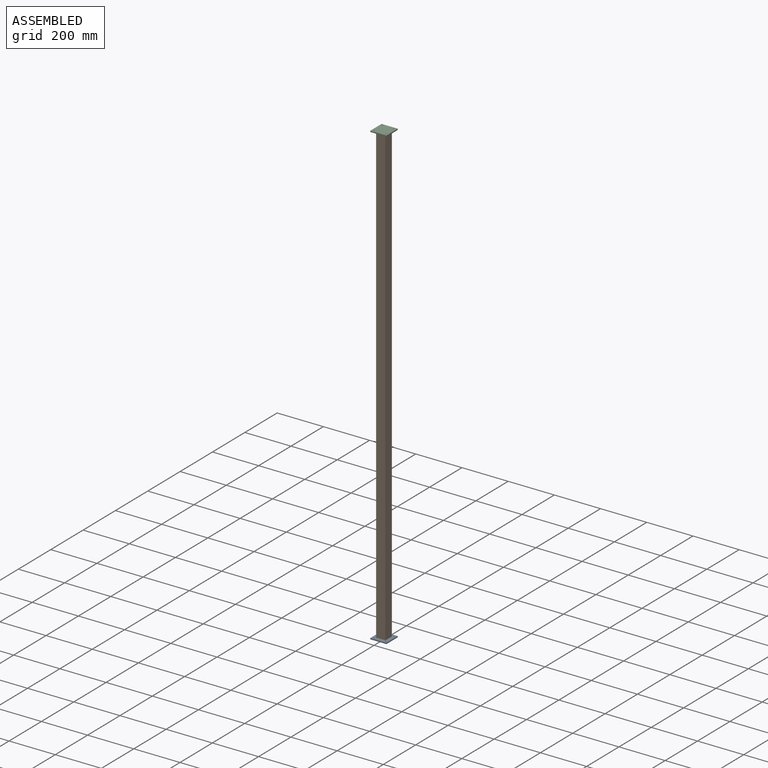
[diagram: assembled view]
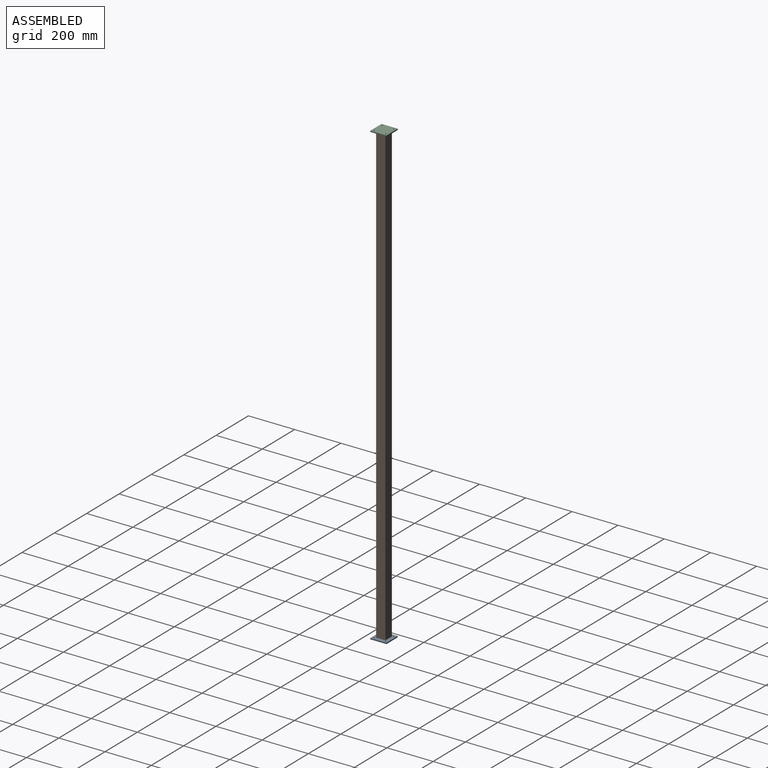
[diagram: assembled view, second angle]
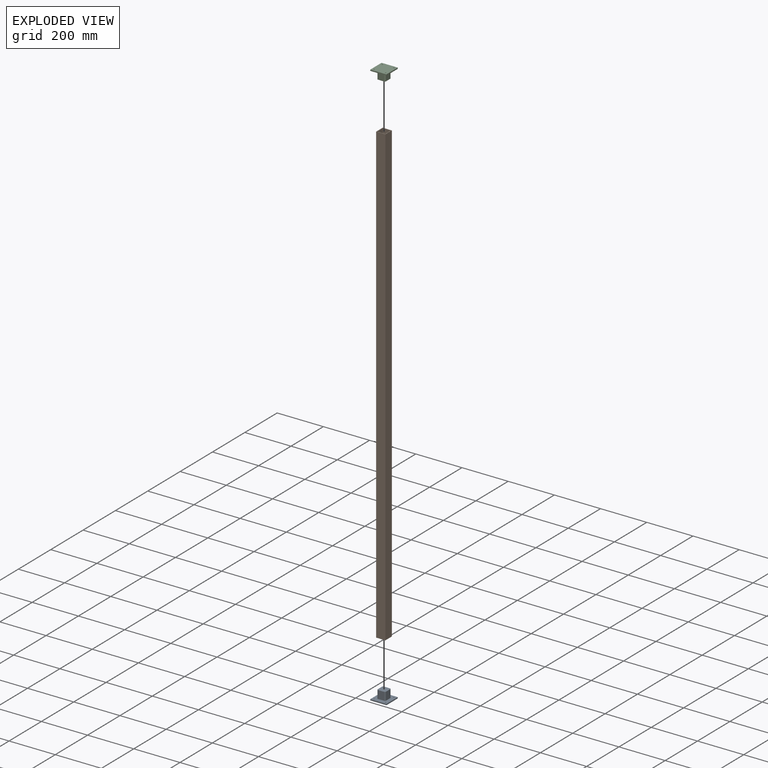
[diagram: exploded view]
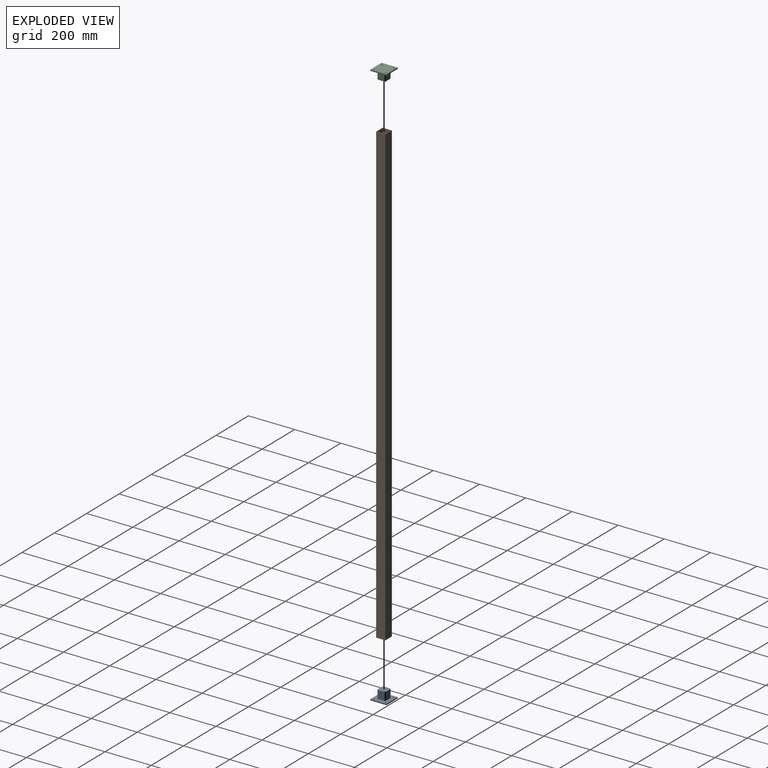
[diagram: exploded view, second angle]
ASSEMBLY  parts=3 mates=2
PART A: 19 faces, bbox 70x70x40 mm
  f0: plane 70x70mm, normal (0,0,1), area 3546.9mm2, adj f1,f2,f3,f4,f6,f7,f8,f9
  f1: plane 70x5mm, normal (0,-1,0), area 350mm2, adj f0,f2,f4,f5
  f2: plane 70x5mm, normal (1,0,0), area 350mm2, adj f0,f1,f3,f5
  f3: plane 70x5mm, normal (0,1,0), area 350mm2, adj f0,f2,f4,f5
  f4: plane 70x5mm, normal (-1,0,0), area 350mm2, adj f0,f1,f3,f5
  f5: plane 70x70mm, normal (0,0,-1), area 4821.5mm2, adj f1,f2,f3,f4,f6,f7,f8,f9
  f6: cylinder r=2.5mm len=5mm, axis (0,0,-1), area 78.5mm2, adj f0,f5
  f7: cylinder r=2.5mm len=5mm, axis (0,0,-1), area 78.5mm2, adj f0,f5
  f8: cylinder r=2.5mm len=5mm, axis (0,0,-1), area 78.5mm2, adj f0,f5
  f9: cylinder r=2.5mm len=5mm, axis (0,0,-1), area 78.5mm2, adj f0,f5
  f10: plane 35x26mm, normal (0,-1,0), area 910mm2, adj f0,f14,f15,f18
  f11: plane 35x26mm, normal (1,0,0), area 910mm2, adj f0,f14,f15,f16
  f12: plane 35x26mm, normal (0,1,0), area 910mm2, adj f0,f14,f16,f17
  f13: plane 35x26mm, normal (-1,0,0), area 910mm2, adj f0,f14,f17,f18
  f14: plane 36x36mm, normal (0,0,1), area 1274.5mm2, adj f10,f11,f12,f13,f15,f16,f17,f18
  f15: cylinder r=5mm len=35mm, axis (0,0,1), area 274.9mm2, adj f0,f10,f11,f14
  f16: cylinder r=5mm len=35mm, axis (0,0,-1), area 274.9mm2, adj f0,f11,f12,f14
  f17: cylinder r=5mm len=35mm, axis (0,0,1), area 274.9mm2, adj f0,f12,f13,f14
  f18: cylinder r=5mm len=35mm, axis (0,0,-1), area 274.9mm2, adj f0,f10,f13,f14
PART B: 10 faces, bbox 40x40x1980 mm
  f0: plane 1980x40mm, normal (0,-1,0), area 79200mm2, adj f1,f7,f8,f9
  f1: plane 1980x40mm, normal (1,0,0), area 79200mm2, adj f0,f2,f8,f9
  f2: plane 1980x40mm, normal (0,1,0), area 79200mm2, adj f1,f7,f8,f9
  f3: plane 1980x36mm, normal (-1,0,0), area 71280mm2, adj f4,f6,f8,f9
  f4: plane 1980x36mm, normal (0,1,0), area 71280mm2, adj f3,f5,f8,f9
  f5: plane 1980x36mm, normal (1,0,0), area 71280mm2, adj f4,f6,f8,f9
  f6: plane 1980x36mm, normal (0,-1,0), area 71280mm2, adj f3,f5,f8,f9
  f7: plane 1980x40mm, normal (-1,0,0), area 79200mm2, adj f0,f2,f8,f9
  f8: plane 40x40mm, normal (0,0,1), area 304mm2, adj f0,f1,f2,f3,f4,f5,f6,f7
  f9: plane 40x40mm, normal (0,0,-1), area 304mm2, adj f0,f1,f2,f3,f4,f5,f6,f7
PART C: same geometry as A
PLACE A t=(-73.95,-4.28,-897.38)mm
PLACE B t=(-73.95,-4.28,-892.38)mm
PLACE C rot(axis=(1,0,0),180deg) t=(-73.95,-4.28,1092.62)mm
MATE fastened C.f0 <-> B.f8  axis (0,0,-1) through (-73.95,-4.28,1087.62)mm
MATE fastened A.f0 <-> B.f9  axis (0,0,1) through (-73.95,-4.28,-892.38)mm
